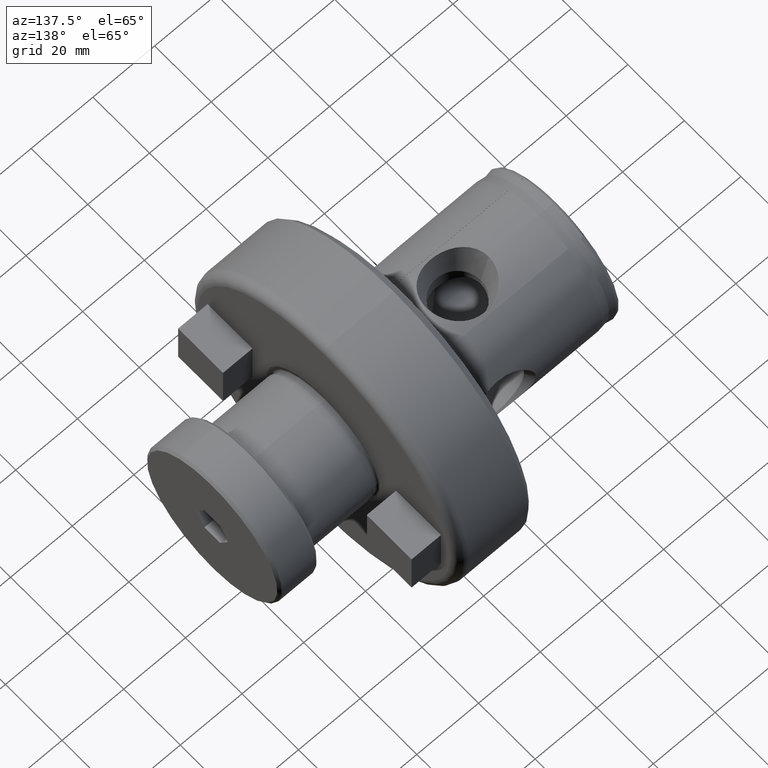
[diagram: clean part render]
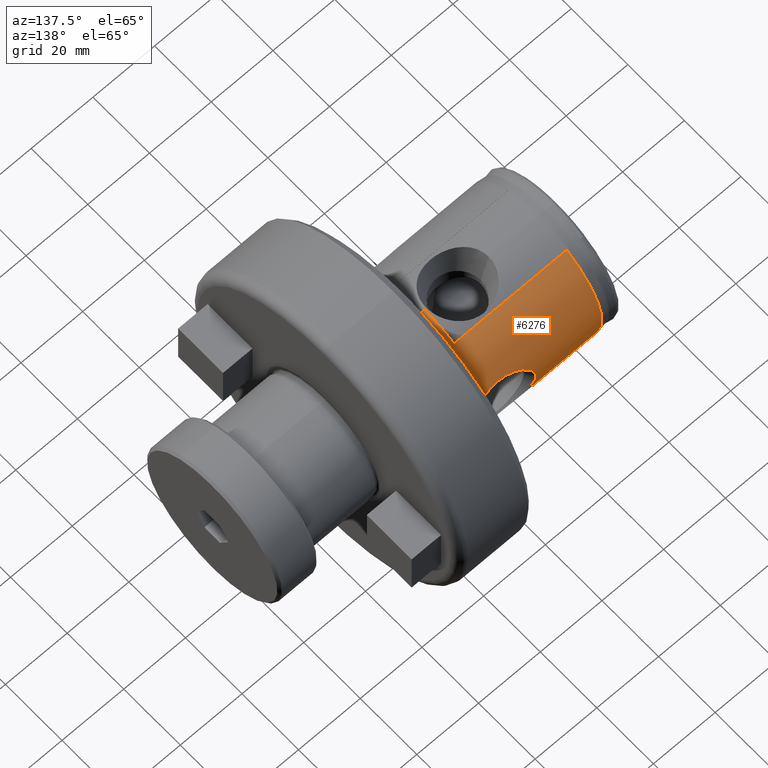
[diagram: same view with one face highlighted and labeled with its STEP entity id]
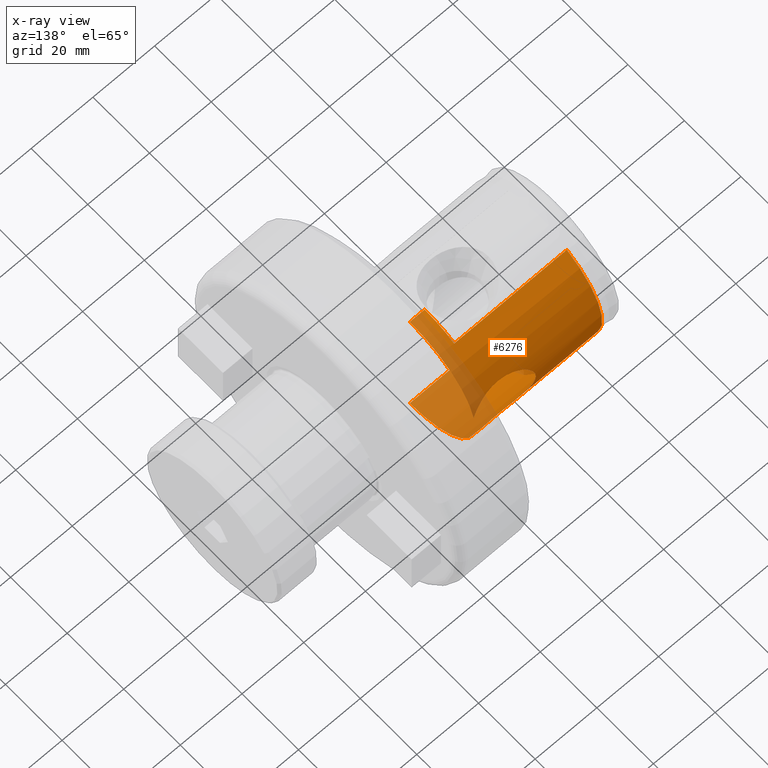
[diagram: x-ray of the same camera — body ghosted, the highlighted face saturated]
A machine part, auxiliary view. The second image highlights one B-rep face of the part: STEP entity #6276.
The next image is the same camera in x-ray: the body ghosted, the highlighted face saturated — about 28% of this face is hidden behind the body in this view.
In plain terms, the highlighted cylindrical surface (partial cylindrical patch) has radius 23 mm, axis along (-1, -0, -0).
Its self-contained STEP definition (entity closure, byte-faithful):
#200 = DIRECTION ( 'NONE',  ( -1.000000000000000000, -0.0000000000000000000, -0.0000000000000000000 ) ) ;
#203 = DIRECTION ( 'NONE',  ( 0.0000000000000000000, 0.0000000000000000000, 1.000000000000000000 ) ) ;
#205 = CARTESIAN_POINT ( 'NONE',  ( 0.0000000000000000000, 0.0000000000000000000, 0.0000000000000000000 ) ) ;
#642 = CIRCLE ( 'NONE', #3197, 22.99999999999998600 ) ;
#678 = LINE ( 'NONE', #5324, #697 ) ;
#689 = LINE ( 'NONE', #5325, #693 ) ;
#690 = CIRCLE ( 'NONE', #7080, 22.99999999999999300 ) ;
#693 = VECTOR ( 'NONE', #5326, 1000.000000000000000 ) ;
#695 = LINE ( 'NONE', #5328, #696 ) ;
#696 = VECTOR ( 'NONE', #5329, 1000.000000000000000 ) ;
#697 = VECTOR ( 'NONE', #5331, 1000.000000000000000 ) ;
#701 = CIRCLE ( 'NONE', #7082, 22.99999999999998900 ) ;
#958 = FACE_OUTER_BOUND ( 'NONE', #6956, .T. ) ;
#960 = CYLINDRICAL_SURFACE ( 'NONE', #7193, 22.99999999999998900 ) ;
#2238 = CIRCLE ( 'NONE', #3184, 22.99999999999999300 ) ;
#2573 = EDGE_CURVE ( 'NONE', #3978, #3866, #2238, .T. ) ;
#2945 = EDGE_CURVE ( 'NONE', #3899, #3903, #642, .T. ) ;
#2976 = EDGE_CURVE ( 'NONE', #9298, #9297, #7042, .T. ) ;
#2984 = EDGE_CURVE ( 'NONE', #3861, #3983, #690, .T. ) ;
#2989 = EDGE_CURVE ( 'NONE', #9297, #3978, #7044, .T. ) ;
#2990 = EDGE_CURVE ( 'NONE', #3866, #3903, #689, .T. ) ;
#2991 = EDGE_CURVE ( 'NONE', #3861, #3904, #695, .T. ) ;
#2992 = EDGE_CURVE ( 'NONE', #3876, #3899, #678, .T. ) ;
#2993 = EDGE_CURVE ( 'NONE', #3876, #3904, #701, .T. ) ;
#3012 = EDGE_CURVE ( 'NONE', #3983, #9298, #7045, .T. ) ;
#3184 = AXIS2_PLACEMENT_3D ( 'NONE', #4940, #4941, #4942 ) ;
#3197 = AXIS2_PLACEMENT_3D ( 'NONE', #5020, #5026, #5027 ) ;
#3861 = VERTEX_POINT ( 'NONE', #5781 ) ;
#3866 = VERTEX_POINT ( 'NONE', #5782 ) ;
#3876 = VERTEX_POINT ( 'NONE', #5792 ) ;
#3899 = VERTEX_POINT ( 'NONE', #5800 ) ;
#3903 = VERTEX_POINT ( 'NONE', #5804 ) ;
#3904 = VERTEX_POINT ( 'NONE', #5805 ) ;
#3978 = VERTEX_POINT ( 'NONE', #5821 ) ;
#3983 = VERTEX_POINT ( 'NONE', #5826 ) ;
#4940 = CARTESIAN_POINT ( 'NONE',  ( 47.31994326666490000, 0.0000000000000000000, 0.0000000000000000000 ) ) ;
#4941 = DIRECTION ( 'NONE',  ( -1.000000000000000000, -0.0000000000000000000, -0.0000000000000000000 ) ) ;
#4942 = DIRECTION ( 'NONE',  ( 0.0000000000000000000, 0.0000000000000000000, 1.000000000000000000 ) ) ;
#5020 = CARTESIAN_POINT ( 'NONE',  ( 6.000000000000000000, 0.0000000000000000000, 0.0000000000000000000 ) ) ;
#5026 = DIRECTION ( 'NONE',  ( -1.000000000000000000, -0.0000000000000000000, -0.0000000000000000000 ) ) ;
#5027 = DIRECTION ( 'NONE',  ( 0.0000000000000000000, 0.0000000000000000000, 1.000000000000000000 ) ) ;
#5223 = CARTESIAN_POINT ( 'NONE',  ( 37.99999999999999300, 21.02302948290293500, 9.329106675400032200 ) ) ;
#5227 = CARTESIAN_POINT ( 'NONE',  ( 37.34672013531245200, 21.02302948290293500, 9.329106675400032200 ) ) ;
#5228 = CARTESIAN_POINT ( 'NONE',  ( 36.68401058337281000, 21.04805742750650000, 9.273264838382019100 ) ) ;
#5229 = CARTESIAN_POINT ( 'NONE',  ( 35.40018018246572500, 21.14289021765644300, 9.054963030212299200 ) ) ;
#5230 = CARTESIAN_POINT ( 'NONE',  ( 34.77298781264473600, 21.21237417468118000, 8.893220479673779300 ) ) ;
#5231 = CARTESIAN_POINT ( 'NONE',  ( 33.85417199471006500, 21.34411461546712400, 8.569849382485966100 ) ) ;
#5232 = CARTESIAN_POINT ( 'NONE',  ( 33.55013040917823700, 21.39288758197375600, 8.447782423573244200 ) ) ;
#5233 = CARTESIAN_POINT ( 'NONE',  ( 32.95940360873681400, 21.49681667861639800, 8.179702907621992500 ) ) ;
#5234 = CARTESIAN_POINT ( 'NONE',  ( 32.67223516344359500, 21.55198369335659000, 8.033695286310219800 ) ) ;
#5235 = CARTESIAN_POINT ( 'NONE',  ( 31.83473859810557400, 21.72467860671368800, 7.559853419409896500 ) ) ;
#5236 = CARTESIAN_POINT ( 'NONE',  ( 31.30815519338855100, 21.84942086450728000, 7.196628563024516400 ) ) ;
#5237 = CARTESIAN_POINT ( 'NONE',  ( 30.56806869025394500, 22.04152164685811900, 6.574076907689105000 ) ) ;
#5238 = CARTESIAN_POINT ( 'NONE',  ( 30.32972208733660200, 22.10642472344307700, 6.353164210319465400 ) ) ;
#5239 = CARTESIAN_POINT ( 'NONE',  ( 29.88097171409930700, 22.23323036757928200, 5.894079822897678500 ) ) ;
#5240 = CARTESIAN_POINT ( 'NONE',  ( 29.66911736479820800, 22.29550035252381300, 5.654774460112021100 ) ) ;
#5241 = CARTESIAN_POINT ( 'NONE',  ( 29.07146015263001000, 22.47637168572174100, 4.906725639546597700 ) ) ;
#5242 = CARTESIAN_POINT ( 'NONE',  ( 28.72300614365534300, 22.58914781162280500, 4.368298210244891100 ) ) ;
#5243 = CARTESIAN_POINT ( 'NONE',  ( 28.28527191870844200, 22.73546209714546200, 3.490941170587963200 ) ) ;
#5244 = CARTESIAN_POINT ( 'NONE',  ( 28.15597701882341400, 22.77961915606984200, 3.191068754125744100 ) ) ;
#5245 = CARTESIAN_POINT ( 'NONE',  ( 27.93333423163185400, 22.85657347713734900, 2.582831309505722000 ) ) ;
#5246 = CARTESIAN_POINT ( 'NONE',  ( 27.83947931671895400, 22.88954253136071400, 2.273464550192782600 ) ) ;
#5247 = CARTESIAN_POINT ( 'NONE',  ( 27.68739548057581600, 22.94334875735827600, 1.643942259989817700 ) ) ;
#5248 = CARTESIAN_POINT ( 'NONE',  ( 27.62915969025317500, 22.96418897180820600, 1.323788875533435900 ) ) ;
#5249 = CARTESIAN_POINT ( 'NONE',  ( 27.55026809874536300, 22.99249322762191000, 0.6720470948260729400 ) ) ;
#5250 = CARTESIAN_POINT ( 'NONE',  ( 27.52993919615654100, 22.99983765961740900, 0.3393201181388690300 ) ) ;
#5251 = CARTESIAN_POINT ( 'NONE',  ( 27.52861084715092600, 23.00031651696898600, -0.6450753169664288400 ) ) ;
#5252 = CARTESIAN_POINT ( 'NONE',  ( 27.60479751704353600, 22.97259896412502300, -1.293096020951950000 ) ) ;
#5253 = CARTESIAN_POINT ( 'NONE',  ( 27.83350975557966900, 22.89164153740824400, -2.252964235021368100 ) ) ;
#5254 = CARTESIAN_POINT ( 'NONE',  ( 27.92880460163795000, 22.85815343201365100, -2.569045102603404500 ) ) ;
#5255 = CARTESIAN_POINT ( 'NONE',  ( 28.15186801632154700, 22.78102560529261600, -3.181201570427477400 ) ) ;
#5256 = CARTESIAN_POINT ( 'NONE',  ( 28.28007468037763100, 22.73722942831550100, -3.479230059584545600 ) ) ;
#5257 = CARTESIAN_POINT ( 'NONE',  ( 28.71280438712520000, 22.59249961805198800, -4.350349013793513500 ) ) ;
#5258 = CARTESIAN_POINT ( 'NONE',  ( 29.06862708856776600, 22.47722553618073200, -4.903229049446282200 ) ) ;
#5259 = CARTESIAN_POINT ( 'NONE',  ( 29.87173431358153800, 22.23418512828621000, -5.908327563428202600 ) ) ;
#5260 = CARTESIAN_POINT ( 'NONE',  ( 30.32138159036985000, 22.10550031671776200, -6.366920765023841100 ) ) ;
#5261 = CARTESIAN_POINT ( 'NONE',  ( 31.31462774158478300, 21.84779390441041300, -7.201716864117094600 ) ) ;
#5262 = CARTESIAN_POINT ( 'NONE',  ( 31.84133868342346200, 21.72318329268426900, -7.564134125396970300 ) ) ;
#5263 = CARTESIAN_POINT ( 'NONE',  ( 32.67939678798726500, 21.55057538131411500, -8.037468823761367200 ) ) ;
#5264 = CARTESIAN_POINT ( 'NONE',  ( 32.96651418972812300, 21.49549541229511000, -8.183167222790020300 ) ) ;
#5265 = CARTESIAN_POINT ( 'NONE',  ( 33.55657580801109700, 21.39182551980534800, -8.450464469267354100 ) ) ;
#5266 = CARTESIAN_POINT ( 'NONE',  ( 33.86028604128169700, 21.34317373658459600, -8.572188231840257800 ) ) ;
#5267 = CARTESIAN_POINT ( 'NONE',  ( 34.77826735112156300, 21.21174753174199900, -8.894699071816866400 ) ) ;
#5268 = CARTESIAN_POINT ( 'NONE',  ( 35.40453974511226700, 21.14249563488240800, -9.055878594101878700 ) ) ;
#5269 = CARTESIAN_POINT ( 'NONE',  ( 36.36542006270405400, 21.07162731124408600, -9.219004130141479800 ) ) ;
#5270 = CARTESIAN_POINT ( 'NONE',  ( 36.68931288327314600, 21.05350228358761600, -9.260180991344670400 ) ) ;
#5271 = CARTESIAN_POINT ( 'NONE',  ( 37.34455777235298500, 21.02913372703620700, -9.315387543624723300 ) ) ;
#5272 = CARTESIAN_POINT ( 'NONE',  ( 37.67359452623215100, 21.02302948290294200, -9.329106675400034000 ) ) ;
#5273 = CARTESIAN_POINT ( 'NONE',  ( 37.99999999999999300, 21.02302948290293500, -9.329106675400032200 ) ) ;
#5287 = CARTESIAN_POINT ( 'NONE',  ( 47.31994326666490000, 0.0000000000000000000, 0.0000000000000000000 ) ) ;
#5293 = DIRECTION ( 'NONE',  ( -1.000000000000000000, -0.0000000000000000000, -0.0000000000000000000 ) ) ;
#5294 = DIRECTION ( 'NONE',  ( 0.0000000000000000000, 0.0000000000000000000, 1.000000000000000000 ) ) ;
#5300 = CARTESIAN_POINT ( 'NONE',  ( 37.99999999999999300, 21.02302948290293500, -9.329106675400032200 ) ) ;
#5309 = CARTESIAN_POINT ( 'NONE',  ( 38.93642399577964900, 21.02302948290293800, -9.329106675400030500 ) ) ;
#5310 = CARTESIAN_POINT ( 'NONE',  ( 39.86153954190142200, 21.07300003772446200, -9.218897319016285500 ) ) ;
#5311 = CARTESIAN_POINT ( 'NONE',  ( 41.68883070908897500, 21.26362103410094000, -8.770280433751278100 ) ) ;
#5312 = CARTESIAN_POINT ( 'NONE',  ( 42.55276007068972200, 21.39997433124238300, -8.441284336976254500 ) ) ;
#5313 = CARTESIAN_POINT ( 'NONE',  ( 43.77428978980179200, 21.64165904296519800, -7.790515998759058600 ) ) ;
#5314 = CARTESIAN_POINT ( 'NONE',  ( 44.17171257433486200, 21.72913594905139700, -7.544823456500969500 ) ) ;
#5315 = CARTESIAN_POINT ( 'NONE',  ( 44.92135572386771300, 21.90778923297272100, -7.009171206766825300 ) ) ;
#5316 = CARTESIAN_POINT ( 'NONE',  ( 45.27499579696792200, 21.99912407918179700, -6.718999661118424200 ) ) ;
#5317 = CARTESIAN_POINT ( 'NONE',  ( 45.93977694400569300, 22.18083165579707100, -6.092382436661065300 ) ) ;
#5318 = CARTESIAN_POINT ( 'NONE',  ( 46.25094083912525600, 22.27122634616511500, -5.755967791745871600 ) ) ;
#5319 = CARTESIAN_POINT ( 'NONE',  ( 46.68341790600699400, 22.40223188946744800, -5.212933762859549300 ) ) ;
#5320 = CARTESIAN_POINT ( 'NONE',  ( 46.82217198050201300, 22.44524393686850400, -5.024871997415567100 ) ) ;
#5321 = CARTESIAN_POINT ( 'NONE',  ( 47.08279364479415100, 22.52751418627218500, -4.642135129791995500 ) ) ;
#5322 = CARTESIAN_POINT ( 'NONE',  ( 47.20528351920967900, 22.56695579666737900, -4.446760827927829700 ) ) ;
#5323 = CARTESIAN_POINT ( 'NONE',  ( 47.31994326666490700, 22.60442801480920100, -4.247332589203330700 ) ) ;
#5324 = CARTESIAN_POINT ( 'NONE',  ( 0.0000000000000000000, 10.50000000000000200, 20.46338192968110900 ) ) ;
#5325 = CARTESIAN_POINT ( 'NONE',  ( 0.0000000000000000000, 2.816687638038911200E-015, -22.99999999999998900 ) ) ;
#5326 = DIRECTION ( 'NONE',  ( -1.000000000000000000, -0.0000000000000000000, -0.0000000000000000000 ) ) ;
#5328 = CARTESIAN_POINT ( 'NONE',  ( 0.0000000000000000000, 0.0000000000000000000, 22.99999999999998900 ) ) ;
#5329 = DIRECTION ( 'NONE',  ( -1.000000000000000000, -0.0000000000000000000, -0.0000000000000000000 ) ) ;
#5330 = CARTESIAN_POINT ( 'NONE',  ( 42.50000000000000000, 0.0000000000000000000, 0.0000000000000000000 ) ) ;
#5331 = DIRECTION ( 'NONE',  ( -1.000000000000000000, -0.0000000000000000000, -0.0000000000000000000 ) ) ;
#5333 = DIRECTION ( 'NONE',  ( 1.000000000000000000, 0.0000000000000000000, 0.0000000000000000000 ) ) ;
#5334 = DIRECTION ( 'NONE',  ( 0.0000000000000000000, 0.0000000000000000000, -1.000000000000000000 ) ) ;
#5373 = CARTESIAN_POINT ( 'NONE',  ( 47.31994326666490000, 22.60442801480919800, 4.247332589203332500 ) ) ;
#5382 = CARTESIAN_POINT ( 'NONE',  ( 47.08955588930716400, 22.52913458138487400, 4.648046439621933400 ) ) ;
#5383 = CARTESIAN_POINT ( 'NONE',  ( 46.82995149347741700, 22.44664710287375400, 5.028554633103333100 ) ) ;
#5384 = CARTESIAN_POINT ( 'NONE',  ( 46.25465311857427500, 22.27232375675918200, 5.751688650575254700 ) ) ;
#5385 = CARTESIAN_POINT ( 'NONE',  ( 45.93895781628020100, 22.18057996718132300, 6.093379422586000500 ) ) ;
#5386 = CARTESIAN_POINT ( 'NONE',  ( 45.27065326374966500, 21.99796512362677300, 6.722866270261525800 ) ) ;
#5387 = CARTESIAN_POINT ( 'NONE',  ( 44.91604271459588200, 21.90645841560960200, 7.013310844424422500 ) ) ;
#5388 = CARTESIAN_POINT ( 'NONE',  ( 44.16670149911163900, 21.72800725024919200, 7.548056057586799200 ) ) ;
#5389 = CARTESIAN_POINT ( 'NONE',  ( 43.76967925708739700, 21.64067769323790100, 7.793238074578217000 ) ) ;
#5390 = CARTESIAN_POINT ( 'NONE',  ( 42.54732527097091600, 21.39903855798634100, 8.443643267716630900 ) ) ;
#5391 = CARTESIAN_POINT ( 'NONE',  ( 41.68450828607048900, 21.26305628226023000, 8.771633812662500400 ) ) ;
#5392 = CARTESIAN_POINT ( 'NONE',  ( 39.85911555709484600, 21.07286143327006300, 9.219199163713176000 ) ) ;
#5393 = CARTESIAN_POINT ( 'NONE',  ( 38.93453641224543600, 21.02302948290294200, 9.329106675400032200 ) ) ;
#5394 = CARTESIAN_POINT ( 'NONE',  ( 37.99999999999999300, 21.02302948290293500, 9.329106675400032200 ) ) ;
#5781 = CARTESIAN_POINT ( 'NONE',  ( 47.31994326666490000, 0.0000000000000000000, 22.99999999999999300 ) ) ;
#5782 = CARTESIAN_POINT ( 'NONE',  ( 47.31994326666490000, 2.816687638038912000E-015, -22.99999999999999300 ) ) ;
#5792 = CARTESIAN_POINT ( 'NONE',  ( 42.50000000000000000, 10.50000000000000200, 20.46338192968110900 ) ) ;
#5800 = CARTESIAN_POINT ( 'NONE',  ( 6.000000000000000000, 10.50000000000000200, 20.46338192968110500 ) ) ;
#5804 = CARTESIAN_POINT ( 'NONE',  ( 6.000000000000000000, 2.816687638038911200E-015, -22.99999999999998600 ) ) ;
#5805 = CARTESIAN_POINT ( 'NONE',  ( 42.50000000000000000, 0.0000000000000000000, 22.99999999999998900 ) ) ;
#5821 = CARTESIAN_POINT ( 'NONE',  ( 47.31994326666490700, 22.60442801480920100, -4.247332589203330700 ) ) ;
#5826 = CARTESIAN_POINT ( 'NONE',  ( 47.31994326666490000, 22.60442801480919800, 4.247332589203332500 ) ) ;
#6276 = ADVANCED_FACE ( 'NONE', ( #958 ), #960, .T. ) ;
#6669 = ORIENTED_EDGE ( 'NONE', *, *, #2573, .T. ) ;
#6670 = ORIENTED_EDGE ( 'NONE', *, *, #2990, .T. ) ;
#6671 = ORIENTED_EDGE ( 'NONE', *, *, #2945, .F. ) ;
#6672 = ORIENTED_EDGE ( 'NONE', *, *, #2992, .F. ) ;
#6673 = ORIENTED_EDGE ( 'NONE', *, *, #2993, .T. ) ;
#6674 = ORIENTED_EDGE ( 'NONE', *, *, #2991, .F. ) ;
#6675 = ORIENTED_EDGE ( 'NONE', *, *, #2984, .T. ) ;
#6676 = ORIENTED_EDGE ( 'NONE', *, *, #3012, .T. ) ;
#6677 = ORIENTED_EDGE ( 'NONE', *, *, #2976, .T. ) ;
#6678 = ORIENTED_EDGE ( 'NONE', *, *, #2989, .T. ) ;
#6956 = EDGE_LOOP ( 'NONE', ( #6669, #6670, #6671, #6672, #6673, #6674, #6675, #6676, #6677, #6678 ) ) ;
#7042 = B_SPLINE_CURVE_WITH_KNOTS ( 'NONE', 3,
 ( #5223, #5227, #5228, #5229, #5230, #5231, #5232, #5233, #5234, #5235, #5236, #5237, #5238, #5239, #5240, #5241, #5242, #5243, #5244, #5245, #5246, #5247, #5248, #5249, #5250, #5251, #5252, #5253, #5254, #5255, #5256, #5257, #5258, #5259, #5260, #5261, #5262, #5263, #5264, #5265, #5266, #5267, #5268, #5269, #5270, #5271, #5272, #5273 ),
 .UNSPECIFIED., .F., .F.,
 ( 4, 2, 2, 2, 2, 2, 2, 2, 2, 2, 2, 2, 2, 2, 2, 2, 2, 2, 2, 2, 2, 2, 2, 4 ),
 ( 0.03912153132853355600, 0.04107657020053784300, 0.04303160907254213000, 0.04400912850854428500, 0.04498664794454643900, 0.04694168681655072600, 0.04791920625255287300, 0.04889672568855502100, 0.05085176456055931500, 0.05182928399656146200, 0.05280680343256360900, 0.05378432286856575700, 0.05476184230456790400, 0.05671688117657219100, 0.05769440061257433800, 0.05867192004857648600, 0.06062695892058078000, 0.06258199779258508100, 0.06453703666458937600, 0.06551455610059150900, 0.06649207553659364200, 0.06844711440859792300, 0.06942463384460007000, 0.07040215328060221700 ),
 .UNSPECIFIED. ) ;
#7044 = B_SPLINE_CURVE_WITH_KNOTS ( 'NONE', 3,
 ( #5300, #5309, #5310, #5311, #5312, #5313, #5314, #5315, #5316, #5317, #5318, #5319, #5320, #5321, #5322, #5323 ),
 .UNSPECIFIED., .F., .F.,
 ( 4, 2, 2, 2, 2, 2, 2, 4 ),
 ( 0.007805913196052836600, 0.01061031670573302900, 0.01341472021541322300, 0.01481692197025332200, 0.01621912372509341800, 0.01762132547993351700, 0.01832242635735355900, 0.01902352723477359800 ),
 .UNSPECIFIED. ) ;
#7045 = B_SPLINE_CURVE_WITH_KNOTS ( 'NONE', 3,
 ( #5373, #5382, #5383, #5384, #5385, #5386, #5387, #5388, #5389, #5390, #5391, #5392, #5393, #5394 ),
 .UNSPECIFIED., .F., .F.,
 ( 4, 2, 2, 2, 2, 2, 4 ),
 ( 0.02793456468833471800, 0.02933293551835957500, 0.03073130634838443600, 0.03212967717840929700, 0.03352804800843415400, 0.03632478966848385500, 0.03912153132853355600 ),
 .UNSPECIFIED. ) ;
#7080 = AXIS2_PLACEMENT_3D ( 'NONE', #5287, #5293, #5294 ) ;
#7082 = AXIS2_PLACEMENT_3D ( 'NONE', #5330, #5333, #5334 ) ;
#7193 = AXIS2_PLACEMENT_3D ( 'NONE', #205, #200, #203 ) ;
#8868 = CARTESIAN_POINT ( 'NONE',  ( 37.99999999999999300, 21.02302948290293500, -9.329106675400032200 ) ) ;
#8869 = CARTESIAN_POINT ( 'NONE',  ( 37.99999999999999300, 21.02302948290293500, 9.329106675400032200 ) ) ;
#9297 = VERTEX_POINT ( 'NONE', #8868 ) ;
#9298 = VERTEX_POINT ( 'NONE', #8869 ) ;